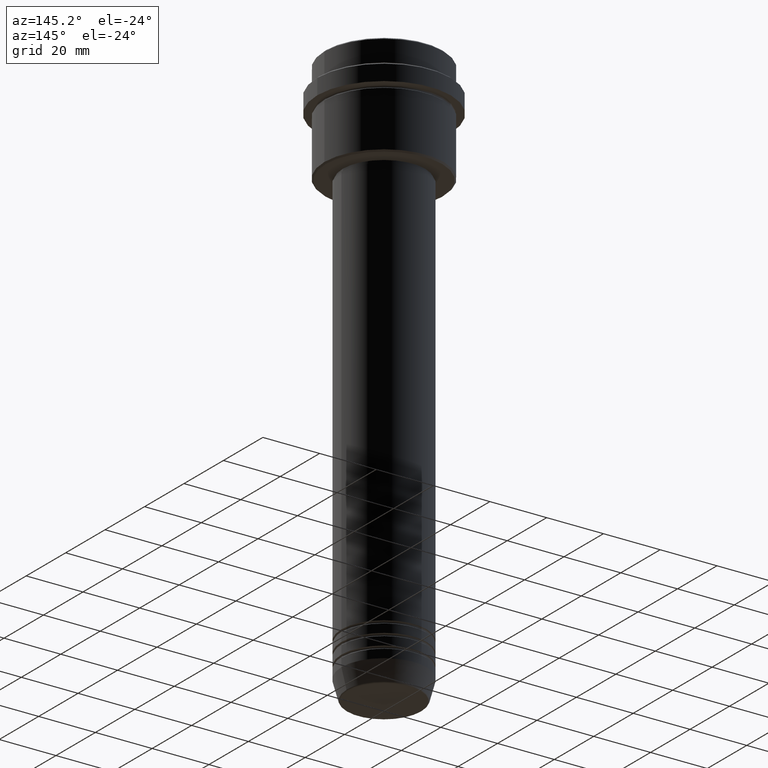
[diagram: clean part render]
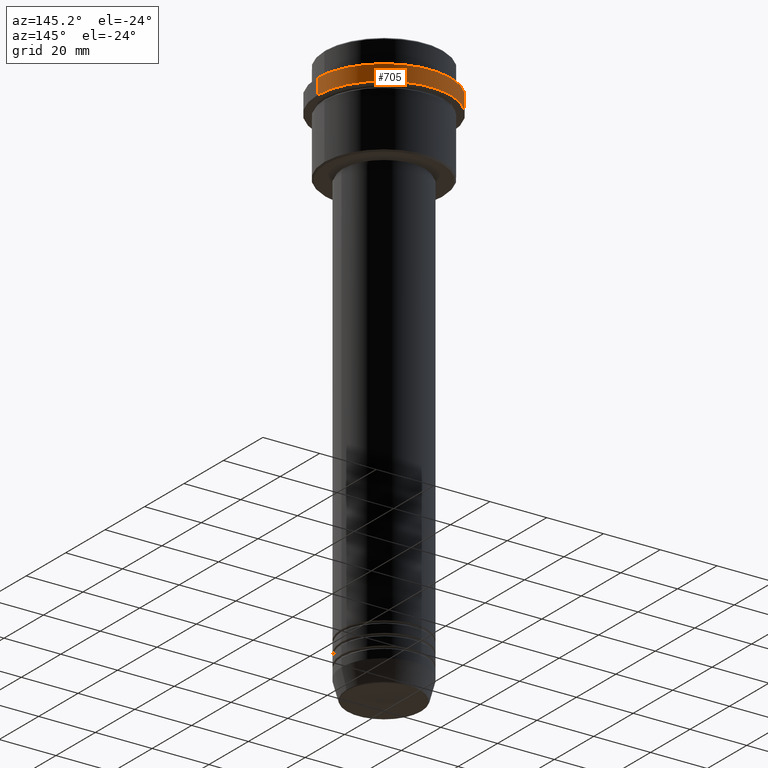
[diagram: same view with one face highlighted and labeled with its STEP entity id]
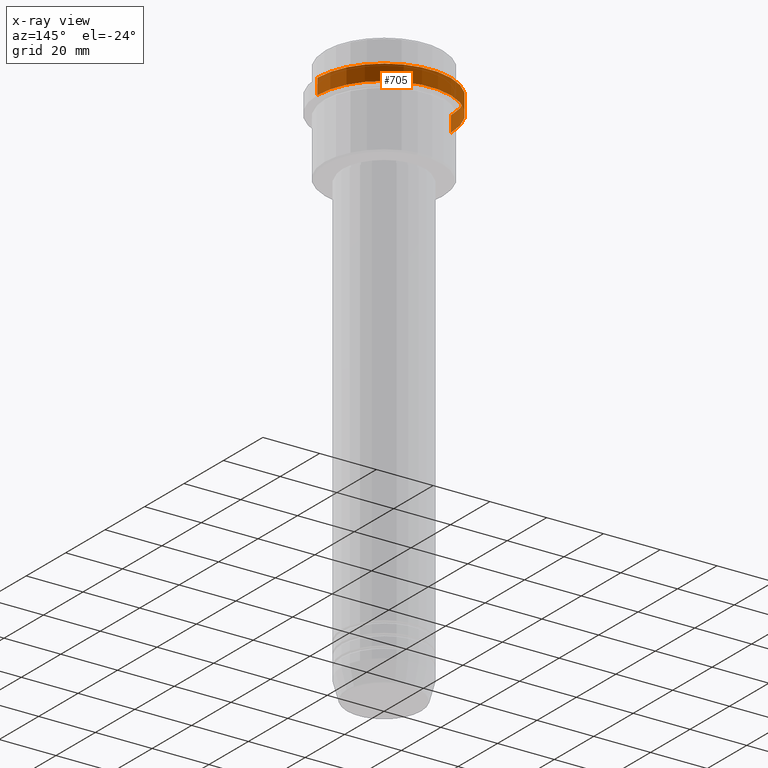
[diagram: x-ray of the same camera — body ghosted, the highlighted face saturated]
A machine part, auxiliary view. The second image highlights one B-rep face of the part: STEP entity #705.
The next image is the same camera in x-ray: the body ghosted, the highlighted face saturated — about 1% of this face is hidden behind the body in this view.
In plain terms, the highlighted cylindrical surface (partial cylindrical patch) has radius 23.5 mm, axis along (-0, -0, 1).
Its self-contained STEP definition (entity closure, byte-faithful):
#86 = DIRECTION ( 'NONE',  ( 1.000000000000000000, 0.000000000000000000, 0.000000000000000000 ) ) ;
#103 = EDGE_CURVE ( 'NONE', #491, #795, #985, .T. ) ;
#121 = LINE ( 'NONE', #1238, #1200 ) ;
#210 = DIRECTION ( 'NONE',  ( -0.000000000000000000, -0.000000000000000000, 1.000000000000000000 ) ) ;
#234 = DIRECTION ( 'NONE',  ( -0.000000000000000000, -0.000000000000000000, 1.000000000000000000 ) ) ;
#366 = ORIENTED_EDGE ( 'NONE', *, *, #877, .T. ) ;
#431 = CARTESIAN_POINT ( 'NONE',  ( 0.000000000000000000, 0.000000000000000000, -9.500000000000026645 ) ) ;
#433 = DIRECTION ( 'NONE',  ( -0.000000000000000000, -0.000000000000000000, 1.000000000000000000 ) ) ;
#491 = VERTEX_POINT ( 'NONE', #1024 ) ;
#530 = CIRCLE ( 'NONE', #872, 23.50000000000000000 ) ;
#547 = CARTESIAN_POINT ( 'NONE',  ( 23.50000000000000000, 0.000000000000000000, -9.500000000000026645 ) ) ;
#567 = CARTESIAN_POINT ( 'NONE',  ( -23.50000000000000000, 2.877919977996280320E-15, -9.500000000000026645 ) ) ;
#591 = CARTESIAN_POINT ( 'NONE',  ( -23.50000000000000711, 2.877919977996281109E-15, -15.00000000000000000 ) ) ;
#624 = EDGE_LOOP ( 'NONE', ( #808, #366, #704, #663 ) ) ;
#636 = DIRECTION ( 'NONE',  ( -0.000000000000000000, -0.000000000000000000, 1.000000000000000000 ) ) ;
#644 = AXIS2_PLACEMENT_3D ( 'NONE', #964, #636, #867 ) ;
#663 = ORIENTED_EDGE ( 'NONE', *, *, #103, .F. ) ;
#704 = ORIENTED_EDGE ( 'NONE', *, *, #1281, .T. ) ;
#705 = ADVANCED_FACE ( 'NONE', ( #1318 ), #978, .T. ) ;
#795 = VERTEX_POINT ( 'NONE', #547 ) ;
#808 = ORIENTED_EDGE ( 'NONE', *, *, #1289, .T. ) ;
#867 = DIRECTION ( 'NONE',  ( 1.000000000000000000, 0.000000000000000000, 0.000000000000000000 ) ) ;
#872 = AXIS2_PLACEMENT_3D ( 'NONE', #431, #1187, #86 ) ;
#877 = EDGE_CURVE ( 'NONE', #1056, #1325, #121, .T. ) ;
#964 = CARTESIAN_POINT ( 'NONE',  ( 0.000000000000000000, 0.000000000000000000, -15.00000000000000000 ) ) ;
#973 = DIRECTION ( 'NONE',  ( 1.000000000000000000, 0.000000000000000000, 0.000000000000000000 ) ) ;
#978 = CYLINDRICAL_SURFACE ( 'NONE', #1417, 23.50000000000000000 ) ;
#982 = CARTESIAN_POINT ( 'NONE',  ( 0.000000000000000000, 0.000000000000000000, 0.000000000000000000 ) ) ;
#985 = LINE ( 'NONE', #1204, #1184 ) ;
#1024 = CARTESIAN_POINT ( 'NONE',  ( 23.50000000000000355, 0.000000000000000000, -15.00000000000000000 ) ) ;
#1056 = VERTEX_POINT ( 'NONE', #591 ) ;
#1091 = CIRCLE ( 'NONE', #644, 23.50000000000000355 ) ;
#1184 = VECTOR ( 'NONE', #210, 1000.000000000000000 ) ;
#1187 = DIRECTION ( 'NONE',  ( 0.000000000000000000, 0.000000000000000000, -1.000000000000000000 ) ) ;
#1200 = VECTOR ( 'NONE', #234, 1000.000000000000000 ) ;
#1204 = CARTESIAN_POINT ( 'NONE',  ( 23.50000000000000000, 0.000000000000000000, 0.000000000000000000 ) ) ;
#1238 = CARTESIAN_POINT ( 'NONE',  ( -23.50000000000000000, 2.877919977996280320E-15, 0.000000000000000000 ) ) ;
#1281 = EDGE_CURVE ( 'NONE', #1325, #795, #530, .T. ) ;
#1289 = EDGE_CURVE ( 'NONE', #491, #1056, #1091, .T. ) ;
#1318 = FACE_OUTER_BOUND ( 'NONE', #624, .T. ) ;
#1325 = VERTEX_POINT ( 'NONE', #567 ) ;
#1417 = AXIS2_PLACEMENT_3D ( 'NONE', #982, #433, #973 ) ;